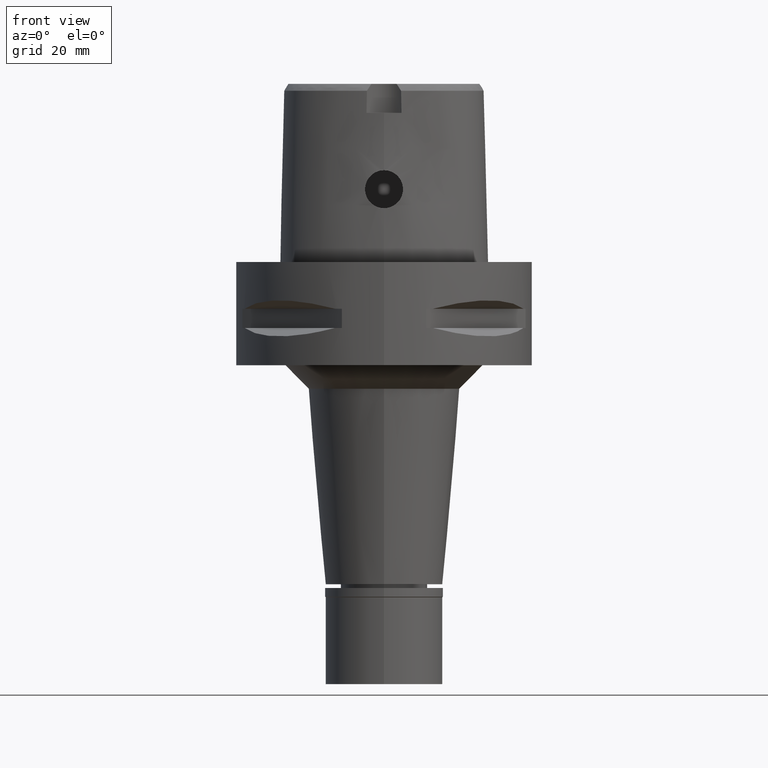
[diagram: clean part render]
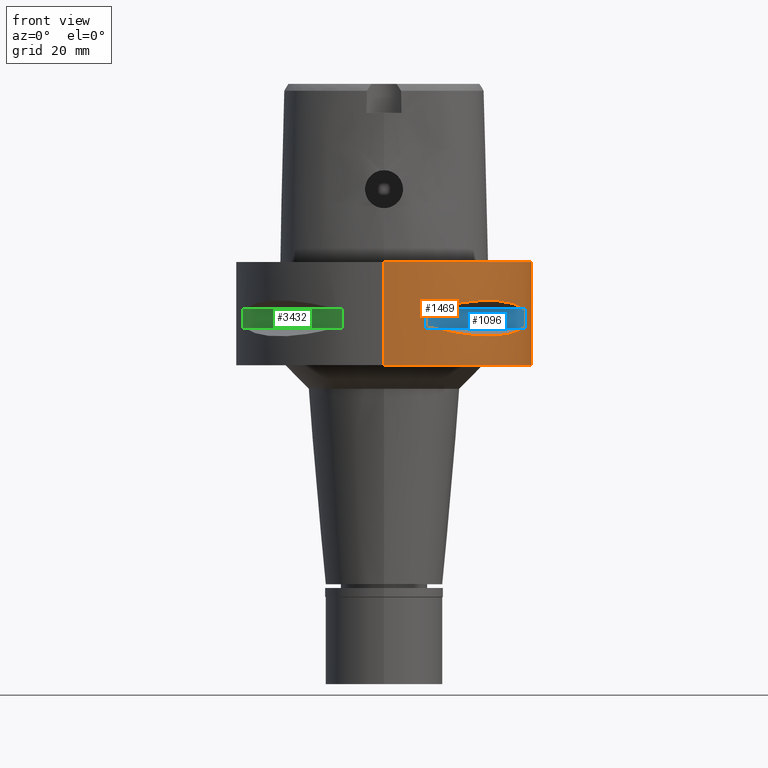
[diagram: same view with three faces highlighted in distinct colors, each labeled with its STEP entity id]
A machine part, front view with three faces highlighted in distinct colors.
Their STEP definitions:

[orange] entity #1469 — the highlighted cylindrical surface (partial cylindrical patch) has radius 31.5 mm, axis along (0, 0, -1).
#1 = CARTESIAN_POINT ( 'NONE',  ( 17.76952662671988392, 26.01217882834739470, -15.52665221626113912 ) ) ;
#26 = DIRECTION ( 'NONE',  ( 0.3316748332540863653, 0.9433937698468619626, 0.0000000000000000000 ) ) ;
#31 = CARTESIAN_POINT ( 'NONE',  ( 27.86285265926905197, -14.89252659056261052, -15.10765629751539230 ) ) ;
#52 = CARTESIAN_POINT ( 'NONE',  ( 26.64486562695712379, 16.80193241490734835, -15.38992683735741451 ) ) ;
#122 = CARTESIAN_POINT ( 'NONE',  ( 0.0000000000000000000, 0.0000000000000000000, -14.05000000000000071 ) ) ;
#184 = DIRECTION ( 'NONE',  ( 0.0000000000000000000, 0.0000000000000000000, -1.000000000000000000 ) ) ;
#193 = EDGE_CURVE ( 'NONE', #4927, #2574, #3085, .T. ) ;
#194 = AXIS2_PLACEMENT_3D ( 'NONE', #4985, #621, #2626 ) ;
#211 = DIRECTION ( 'NONE',  ( 0.0000000000000000000, -1.000000000000000000, 0.0000000000000000000 ) ) ;
#220 = CARTESIAN_POINT ( 'NONE',  ( 10.44775724750000023, -29.71690375017999841, -9.949999999998999201 ) ) ;
#253 = CARTESIAN_POINT ( 'NONE',  ( 23.90617837140503354, 20.64154884334747209, -8.160627831333194138 ) ) ;
#270 = CARTESIAN_POINT ( 'NONE',  ( 30.19251670572000279, -8.981198972017999438, -14.05000000000000071 ) ) ;
#283 = VECTOR ( 'NONE', #1720, 1000.000000000000000 ) ;
#305 = DIRECTION ( 'NONE',  ( 0.0000000000000000000, 0.0000000000000000000, 1.000000000000000000 ) ) ;
#327 = ORIENTED_EDGE ( 'NONE', *, *, #3297, .T. ) ;
#340 = CARTESIAN_POINT ( 'NONE',  ( 11.58970337495982328, -29.31542262584164504, -14.35229357167352049 ) ) ;
#393 = DIRECTION ( 'NONE',  ( 0.0000000000000000000, 0.0000000000000000000, -1.000000000000000000 ) ) ;
#403 = AXIS2_PLACEMENT_3D ( 'NONE', #3030, #305, #1879 ) ;
#441 = CARTESIAN_POINT ( 'NONE',  ( 16.89910283486517528, -26.58330558444475145, -15.40446471307230070 ) ) ;
#460 = CARTESIAN_POINT ( 'NONE',  ( 16.98999780422078132, 26.52527364208593141, -15.41788098766319060 ) ) ;
#481 = CIRCLE ( 'NONE', #3186, 31.50000000000001776 ) ;
#485 = CARTESIAN_POINT ( 'NONE',  ( 27.64634172017658642, 15.11986997311774417, -15.11207862404057423 ) ) ;
#524 = DIRECTION ( 'NONE',  ( 0.9584925938322735872, -0.2851174276831918153, 0.0000000000000000000 ) ) ;
#525 = CIRCLE ( 'NONE', #1759, 31.50000000000000000 ) ;
#540 = CARTESIAN_POINT ( 'NONE',  ( 12.70092055722019531, -28.92474506847807092, -9.353547358250271060 ) ) ;
#551 = CYLINDRICAL_SURFACE ( 'NONE', #1167, 31.50000000000000000 ) ;
#586 = CARTESIAN_POINT ( 'NONE',  ( 14.84422749186521351, -27.88214534477224049, -8.906206096533258787 ) ) ;
#600 = CARTESIAN_POINT ( 'NONE',  ( 10.44775724750000023, 29.71690375017999841, -14.05000000000000071 ) ) ;
#621 = DIRECTION ( 'NONE',  ( 0.0000000000000000000, 0.0000000000000000000, 1.000000000000000000 ) ) ;
#635 = EDGE_CURVE ( 'NONE', #3683, #4020, #3807, .T. ) ;
#681 = ORIENTED_EDGE ( 'NONE', *, *, #4947, .T. ) ;
#689 = CARTESIAN_POINT ( 'NONE',  ( 29.71690375017999841, -10.44775724750000023, -9.949999999998999201 ) ) ;
#694 = ORIENTED_EDGE ( 'NONE', *, *, #3502, .F. ) ;
#697 = DIRECTION ( 'NONE',  ( 0.0000000000000000000, 0.0000000000000000000, 1.000000000000000000 ) ) ;
#725 = VERTEX_POINT ( 'NONE', #2462 ) ;
#727 = ORIENTED_EDGE ( 'NONE', *, *, #3469, .T. ) ;
#737 = VERTEX_POINT ( 'NONE', #2077 ) ;
#749 = CARTESIAN_POINT ( 'NONE',  ( 29.71690375017999841, -10.44775724750000023, -9.949999999998999201 ) ) ;
#757 = EDGE_CURVE ( 'NONE', #725, #1574, #3251, .T. ) ;
#820 = ORIENTED_EDGE ( 'NONE', *, *, #3814, .F. ) ;
#827 = CIRCLE ( 'NONE', #1228, 31.50000000000000711 ) ;
#832 = VERTEX_POINT ( 'NONE', #1460 ) ;
#852 = CARTESIAN_POINT ( 'NONE',  ( 17.35163608579770766, 26.29071741523690875, -15.46976201925451022 ) ) ;
#863 = CIRCLE ( 'NONE', #3713, 31.50000000000001776 ) ;
#887 = EDGE_CURVE ( 'NONE', #4927, #5047, #4110, .T. ) ;
#934 = ORIENTED_EDGE ( 'NONE', *, *, #1846, .F. ) ;
#988 = DIRECTION ( 'NONE',  ( 0.0000000000000000000, 0.0000000000000000000, -1.000000000000000000 ) ) ;
#989 = FACE_BOUND ( 'NONE', #1429, .T. ) ;
#998 = CARTESIAN_POINT ( 'NONE',  ( 10.44775724750000023, -29.71690375017999841, -14.05000000000000071 ) ) ;
#1044 = LINE ( 'NONE', #2196, #2656 ) ;
#1110 = VERTEX_POINT ( 'NONE', #3492 ) ;
#1115 = CARTESIAN_POINT ( 'NONE',  ( 8.981198972017999438, -30.19251670572000279, -9.950000000000001066 ) ) ;
#1126 = AXIS2_PLACEMENT_3D ( 'NONE', #2351, #393, #524 ) ;
#1144 = CARTESIAN_POINT ( 'NONE',  ( 29.71690375017999841, -10.44775724750000023, -14.05000000000000071 ) ) ;
#1164 = CARTESIAN_POINT ( 'NONE',  ( 12.73197616787212993, 28.91382665369246752, -14.65467361753630549 ) ) ;
#1166 = CARTESIAN_POINT ( 'NONE',  ( 0.0000000000000000000, 0.0000000000000000000, -9.950000000000001066 ) ) ;
#1167 = AXIS2_PLACEMENT_3D ( 'NONE', #2173, #4855, #211 ) ;
#1169 = CARTESIAN_POINT ( 'NONE',  ( 18.86897208075581034, -25.32725744465475515, -15.69588095933493932 ) ) ;
#1198 = CARTESIAN_POINT ( 'NONE',  ( 25.43927894891756125, -18.59229662065117594, -15.62866126334438732 ) ) ;
#1228 = AXIS2_PLACEMENT_3D ( 'NONE', #5061, #1980, #26 ) ;
#1261 = CARTESIAN_POINT ( 'NONE',  ( 17.05047092244258522, 26.48642424310472876, -15.42670883407663496 ) ) ;
#1293 = VERTEX_POINT ( 'NONE', #1660 ) ;
#1298 = VERTEX_POINT ( 'NONE', #4367 ) ;
#1313 = DIRECTION ( 'NONE',  ( 0.0000000000000000000, 0.0000000000000000000, -1.000000000000000000 ) ) ;
#1347 = VERTEX_POINT ( 'NONE', #600 ) ;
#1348 = EDGE_CURVE ( 'NONE', #1298, #3415, #4926, .T. ) ;
#1372 = FACE_BOUND ( 'NONE', #4228, .T. ) ;
#1379 = DIRECTION ( 'NONE',  ( 0.0000000000000000000, 0.0000000000000000000, -1.000000000000000000 ) ) ;
#1429 = EDGE_LOOP ( 'NONE', ( #4175, #3930, #2869, #934, #3379, #2737, #3327, #681 ) ) ;
#1439 = CARTESIAN_POINT ( 'NONE',  ( 25.37272068390325330, -18.81462633043451405, -8.309724968561150504 ) ) ;
#1445 = CARTESIAN_POINT ( 'NONE',  ( 14.84430321591224278, 27.88210502977329597, -8.906184731931707788 ) ) ;
#1460 = CARTESIAN_POINT ( 'NONE',  ( 30.19251670572000279, 8.981198972019999616, -9.950000000000001066 ) ) ;
#1469 = ADVANCED_FACE ( 'NONE', ( #1762, #989, #1372 ), #551, .T. ) ;
#1508 = ORIENTED_EDGE ( 'NONE', *, *, #4499, .T. ) ;
#1547 = CARTESIAN_POINT ( 'NONE',  ( 21.46242677078074834, 23.08532645888130830, -15.83938991065315172 ) ) ;
#1574 = VERTEX_POINT ( 'NONE', #1891 ) ;
#1577 = CARTESIAN_POINT ( 'NONE',  ( 29.71690375017999841, -10.44775724750000023, -14.05000000000000071 ) ) ;
#1579 = CARTESIAN_POINT ( 'NONE',  ( 26.48642424310472876, -17.05047092244258522, -15.42670883407663496 ) ) ;
#1609 = AXIS2_PLACEMENT_3D ( 'NONE', #122, #1379, #3319 ) ;
#1647 = CARTESIAN_POINT ( 'NONE',  ( 17.14106442934748742, 26.42800887047532754, -15.43984550238493547 ) ) ;
#1654 = CARTESIAN_POINT ( 'NONE',  ( 0.0000000000000000000, 31.50000000000000000, -22.00000000000000000 ) ) ;
#1660 = CARTESIAN_POINT ( 'NONE',  ( 0.0000000000000000000, 31.50000000000000000, 0.0000000000000000000 ) ) ;
#1676 = VERTEX_POINT ( 'NONE', #4296 ) ;
#1720 = DIRECTION ( 'NONE',  ( 0.0000000000000000000, 0.0000000000000000000, -1.000000000000000000 ) ) ;
#1759 = AXIS2_PLACEMENT_3D ( 'NONE', #2628, #184, #2651 ) ;
#1762 = FACE_OUTER_BOUND ( 'NONE', #2212, .T. ) ;
#1772 = CARTESIAN_POINT ( 'NONE',  ( 0.0000000000000000000, 31.50000000000000000, 0.0000000000000000000 ) ) ;
#1812 = DIRECTION ( 'NONE',  ( 0.9433937698468619626, 0.3316748332540863653, 0.0000000000000000000 ) ) ;
#1828 = CARTESIAN_POINT ( 'NONE',  ( 18.81462633043445010, 25.37272068390330659, -8.309724968561150504 ) ) ;
#1846 = EDGE_CURVE ( 'NONE', #3683, #2574, #4159, .T. ) ;
#1879 = DIRECTION ( 'NONE',  ( 0.2851174276831918153, -0.9584925938322735872, 0.0000000000000000000 ) ) ;
#1891 = CARTESIAN_POINT ( 'NONE',  ( 0.0000000000000000000, -31.50000000000000000, -22.00000000000000000 ) ) ;
#1936 = CARTESIAN_POINT ( 'NONE',  ( 27.88214534477226536, 14.84422749186517265, -8.906206096533262340 ) ) ;
#1963 = CARTESIAN_POINT ( 'NONE',  ( 26.29071741523690875, -17.35163608579770766, -15.46976201925451022 ) ) ;
#1980 = DIRECTION ( 'NONE',  ( 0.0000000000000000000, 0.0000000000000000000, 1.000000000000000000 ) ) ;
#2006 = CARTESIAN_POINT ( 'NONE',  ( 26.84474411198545596, 16.48208282229538213, -15.34094883778132790 ) ) ;
#2015 = CARTESIAN_POINT ( 'NONE',  ( 10.44775724750000023, -29.71690375017999841, -14.05000000000000071 ) ) ;
#2055 = CARTESIAN_POINT ( 'NONE',  ( 25.32725744465475515, 18.86897208075581034, -15.69588095933493932 ) ) ;
#2077 = CARTESIAN_POINT ( 'NONE',  ( 29.71690375017999841, 10.44775724750000023, -9.949999999998999201 ) ) ;
#2105 = VERTEX_POINT ( 'NONE', #1654 ) ;
#2153 = CARTESIAN_POINT ( 'NONE',  ( 18.81455742151816324, -25.37277178176729819, -8.309746333162701504 ) ) ;
#2173 = CARTESIAN_POINT ( 'NONE',  ( 0.0000000000000000000, 0.0000000000000000000, 4.190000000000000391 ) ) ;
#2174 = VECTOR ( 'NONE', #3163, 1000.000000000000000 ) ;
#2196 = CARTESIAN_POINT ( 'NONE',  ( 30.19251670572000279, 8.981198972017999438, -9.950000000000001066 ) ) ;
#2212 = EDGE_LOOP ( 'NONE', ( #1508, #4451, #2414, #820 ) ) ;
#2239 = CARTESIAN_POINT ( 'NONE',  ( 0.0000000000000000000, 0.0000000000000000000, -22.00000000000000000 ) ) ;
#2264 = CARTESIAN_POINT ( 'NONE',  ( 30.19251670572000279, 8.981198972017999438, -14.05000000000000071 ) ) ;
#2288 = CARTESIAN_POINT ( 'NONE',  ( 12.70097436192362572, 28.92472615202281006, -9.353533115182571578 ) ) ;
#2299 = EDGE_CURVE ( 'NONE', #5031, #5047, #2416, .T. ) ;
#2319 = CARTESIAN_POINT ( 'NONE',  ( 13.25636937906381974, -28.62019653467925551, -14.74888225542034448 ) ) ;
#2346 = CARTESIAN_POINT ( 'NONE',  ( 24.23018836745477245, -20.18579225686149314, -15.78559396979075125 ) ) ;
#2350 = EDGE_CURVE ( 'NONE', #832, #737, #863, .T. ) ;
#2351 = CARTESIAN_POINT ( 'NONE',  ( 0.0000000000000000000, 0.0000000000000000000, -14.05000000000000071 ) ) ;
#2367 = CARTESIAN_POINT ( 'NONE',  ( 14.89252659056261052, 27.86285265926905197, -15.10765629751539230 ) ) ;
#2369 = LINE ( 'NONE', #1115, #2174 ) ;
#2371 = CARTESIAN_POINT ( 'NONE',  ( 16.03138450079452682, -27.11872488588860008, -15.26880420107959146 ) ) ;
#2378 = EDGE_CURVE ( 'NONE', #4825, #4020, #2369, .T. ) ;
#2392 = CARTESIAN_POINT ( 'NONE',  ( 10.44775724750000023, 29.71690375017999841, -14.05000000000000071 ) ) ;
#2394 = DIRECTION ( 'NONE',  ( 0.9584925938322735872, 0.2851174276831918153, 0.0000000000000000000 ) ) ;
#2395 = CARTESIAN_POINT ( 'NONE',  ( 26.01217882834739470, -17.76952662671988392, -15.52665221626113912 ) ) ;
#2414 = ORIENTED_EDGE ( 'NONE', *, *, #3372, .T. ) ;
#2416 = CIRCLE ( 'NONE', #194, 31.50000000000000711 ) ;
#2462 = CARTESIAN_POINT ( 'NONE',  ( 0.0000000000000000000, -31.50000000000000000, 0.0000000000000000000 ) ) ;
#2514 = CARTESIAN_POINT ( 'NONE',  ( 8.981198972019999616, -30.19251670572000279, -9.950000000000001066 ) ) ;
#2574 = VERTEX_POINT ( 'NONE', #1577 ) ;
#2576 = DIRECTION ( 'NONE',  ( 0.0000000000000000000, 0.0000000000000000000, -1.000000000000000000 ) ) ;
#2588 = B_SPLINE_CURVE_WITH_KNOTS ( 'NONE', 3,
 ( #3560, #2726, #2752, #485, #4280, #2006, #4379, #52, #3534, #3181, #2055, #3510, #1547, #3203, #3107, #1, #852, #1647, #1261, #460, #4667, #2367, #1164, #2392 ),
 .UNSPECIFIED., .F., .F.,
 ( 4, 1, 1, 1, 1, 1, 2, 2, 2, 1, 1, 1, 1, 1, 2, 2, 4 ),
 ( 0.0000000000000000000, 0.1249999999999912292, 0.1874999999999869826, 0.2187499999999850120, 0.2343749999999839295, 0.2421874999999835409, 0.2460937499999835687, 0.2499999999999836242, 0.4999999999999924505, 0.6249999999999968914, 0.6874999999999992228, 0.7187500000000003331, 0.7343750000000009992, 0.7421875000000014433, 0.7460937500000016653, 0.7500000000000019984, 1.000000000000000000 ),
 .UNSPECIFIED. ) ;
#2626 = DIRECTION ( 'NONE',  ( 0.9433937698468619626, -0.3316748332540863653, 0.0000000000000000000 ) ) ;
#2628 = CARTESIAN_POINT ( 'NONE',  ( 0.0000000000000000000, 0.0000000000000000000, 0.0000000000000000000 ) ) ;
#2651 = DIRECTION ( 'NONE',  ( 0.0000000000000000000, 1.000000000000000000, 0.0000000000000000000 ) ) ;
#2656 = VECTOR ( 'NONE', #988, 1000.000000000000000 ) ;
#2702 = CIRCLE ( 'NONE', #403, 31.50000000000001776 ) ;
#2726 = CARTESIAN_POINT ( 'NONE',  ( 29.31542262584164504, 11.58970337495982328, -14.35229357167352049 ) ) ;
#2737 = ORIENTED_EDGE ( 'NONE', *, *, #2378, .F. ) ;
#2752 = CARTESIAN_POINT ( 'NONE',  ( 28.62019653467925551, 13.25636937906381974, -14.74888225542034448 ) ) ;
#2869 = ORIENTED_EDGE ( 'NONE', *, *, #193, .T. ) ;
#3030 = CARTESIAN_POINT ( 'NONE',  ( 0.0000000000000000000, 0.0000000000000000000, -9.950000000000001066 ) ) ;
#3082 = CARTESIAN_POINT ( 'NONE',  ( 10.44775724750000023, 29.71690375017999841, -9.949999999998999201 ) ) ;
#3085 = CIRCLE ( 'NONE', #1126, 31.50000000000001776 ) ;
#3087 = CARTESIAN_POINT ( 'NONE',  ( 23.08532645888130830, -21.46242677078074834, -15.83938991065315172 ) ) ;
#3107 = CARTESIAN_POINT ( 'NONE',  ( 18.59229662065117594, 25.43927894891756125, -15.62866126334438732 ) ) ;
#3114 = CARTESIAN_POINT ( 'NONE',  ( 16.48208282229538213, -26.84474411198545596, -15.34094883778132790 ) ) ;
#3134 = DIRECTION ( 'NONE',  ( 0.2851174276831918153, 0.9584925938322735872, 0.0000000000000000000 ) ) ;
#3163 = DIRECTION ( 'NONE',  ( 0.0000000000000000000, 0.0000000000000000000, -1.000000000000000000 ) ) ;
#3181 = CARTESIAN_POINT ( 'NONE',  ( 26.58330558444475145, 16.89910283486517528, -15.40446471307230070 ) ) ;
#3186 = AXIS2_PLACEMENT_3D ( 'NONE', #4717, #4690, #3134 ) ;
#3201 = AXIS2_PLACEMENT_3D ( 'NONE', #4443, #2576, #1812 ) ;
#3203 = CARTESIAN_POINT ( 'NONE',  ( 20.18579225686149314, 24.23018836745477245, -15.78559396979075125 ) ) ;
#3251 = LINE ( 'NONE', #4814, #283 ) ;
#3253 = EDGE_CURVE ( 'NONE', #4825, #4928, #2702, .T. ) ;
#3254 = ORIENTED_EDGE ( 'NONE', *, *, #3532, .T. ) ;
#3297 = EDGE_CURVE ( 'NONE', #737, #1110, #3738, .T. ) ;
#3319 = DIRECTION ( 'NONE',  ( 0.3316748332540863653, -0.9433937698468619626, 0.0000000000000000000 ) ) ;
#3327 = ORIENTED_EDGE ( 'NONE', *, *, #3253, .T. ) ;
#3370 = DIRECTION ( 'NONE',  ( 0.0000000000000000000, 0.0000000000000000000, 1.000000000000000000 ) ) ;
#3372 = EDGE_CURVE ( 'NONE', #1574, #2105, #4329, .T. ) ;
#3374 = CARTESIAN_POINT ( 'NONE',  ( 30.19251670572000279, -8.981198972017999438, -9.950000000000001066 ) ) ;
#3379 = ORIENTED_EDGE ( 'NONE', *, *, #635, .T. ) ;
#3415 = VERTEX_POINT ( 'NONE', #2264 ) ;
#3426 = AXIS2_PLACEMENT_3D ( 'NONE', #2239, #697, #3864 ) ;
#3439 = EDGE_CURVE ( 'NONE', #1298, #1347, #2588, .T. ) ;
#3469 = EDGE_CURVE ( 'NONE', #1676, #1347, #481, .T. ) ;
#3492 = CARTESIAN_POINT ( 'NONE',  ( 10.44775724750000023, 29.71690375017999841, -9.949999999998999201 ) ) ;
#3502 = EDGE_CURVE ( 'NONE', #1676, #5072, #3897, .T. ) ;
#3503 = VECTOR ( 'NONE', #1313, 1000.000000000000000 ) ;
#3510 = CARTESIAN_POINT ( 'NONE',  ( 23.89673728055697310, 20.65093790435582122, -15.83935804901768307 ) ) ;
#3516 = CARTESIAN_POINT ( 'NONE',  ( 26.42800887047532754, -17.14106442934748742, -15.43984550238493547 ) ) ;
#3532 = EDGE_CURVE ( 'NONE', #1110, #5072, #827, .T. ) ;
#3534 = CARTESIAN_POINT ( 'NONE',  ( 26.60451452154724805, 16.86571563436727317, -15.39949295786030348 ) ) ;
#3560 = CARTESIAN_POINT ( 'NONE',  ( 29.71690375017999841, 10.44775724750000023, -14.05000000000000071 ) ) ;
#3565 = CARTESIAN_POINT ( 'NONE',  ( 26.54368690921640450, -16.96123479564944247, -15.41365572341321766 ) ) ;
#3658 = ORIENTED_EDGE ( 'NONE', *, *, #3439, .F. ) ;
#3683 = VERTEX_POINT ( 'NONE', #998 ) ;
#3713 = AXIS2_PLACEMENT_3D ( 'NONE', #1166, #5063, #2394 ) ;
#3738 = B_SPLINE_CURVE_WITH_KNOTS ( 'NONE', 3,
 ( #4982, #5007, #1936, #4957, #253, #4638, #1828, #1445, #2288, #3082 ),
 .UNSPECIFIED., .F., .F.,
 ( 4, 2, 2, 2, 4 ),
 ( 0.0000000000000000000, 0.2500000000000000000, 0.5000000000000000000, 0.7500000000000000000, 1.000000000000000000 ),
 .UNSPECIFIED. ) ;
#3781 = CARTESIAN_POINT ( 'NONE',  ( 23.90617837140503710, -20.64154884334746143, -8.160613588441446353 ) ) ;
#3807 = CIRCLE ( 'NONE', #1609, 31.50000000000000711 ) ;
#3814 = EDGE_CURVE ( 'NONE', #1293, #2105, #4819, .T. ) ;
#3834 = CARTESIAN_POINT ( 'NONE',  ( 27.88210502977326755, -14.84430321591229607, -8.906184731931707788 ) ) ;
#3861 = ORIENTED_EDGE ( 'NONE', *, *, #4560, .F. ) ;
#3864 = DIRECTION ( 'NONE',  ( 0.0000000000000000000, -1.000000000000000000, 0.0000000000000000000 ) ) ;
#3873 = CARTESIAN_POINT ( 'NONE',  ( 20.65093790435582122, -23.89673728055697310, -15.83935804901768307 ) ) ;
#3889 = CARTESIAN_POINT ( 'NONE',  ( 8.981198972017999438, -30.19251670572000279, -14.05000000000000071 ) ) ;
#3897 = LINE ( 'NONE', #4306, #4827 ) ;
#3901 = CARTESIAN_POINT ( 'NONE',  ( 16.70616724746141202, -26.70521063584408950, -15.37546661817775373 ) ) ;
#3921 = DIRECTION ( 'NONE',  ( 0.0000000000000000000, 0.0000000000000000000, 1.000000000000000000 ) ) ;
#3930 = ORIENTED_EDGE ( 'NONE', *, *, #887, .F. ) ;
#3946 = CARTESIAN_POINT ( 'NONE',  ( 28.91382665369246752, -12.73197616787212993, -14.65467361753630549 ) ) ;
#4020 = VERTEX_POINT ( 'NONE', #3889 ) ;
#4089 = CARTESIAN_POINT ( 'NONE',  ( 10.44775724750000023, -29.71690375017999841, -9.949999999998999201 ) ) ;
#4110 = LINE ( 'NONE', #270, #4215 ) ;
#4159 = B_SPLINE_CURVE_WITH_KNOTS ( 'NONE', 3,
 ( #2015, #340, #2319, #5039, #2371, #3114, #3901, #4288, #4671, #441, #1169, #3873, #3087, #2346, #1198, #2395, #1963, #3516, #1579, #4643, #3565, #31, #3946, #1144 ),
 .UNSPECIFIED., .F., .F.,
 ( 4, 1, 1, 1, 1, 1, 2, 2, 2, 1, 1, 1, 1, 1, 2, 2, 4 ),
 ( 0.0000000000000000000, 0.1249999999999912292, 0.1874999999999869826, 0.2187499999999850120, 0.2343749999999839295, 0.2421874999999835409, 0.2460937499999835687, 0.2499999999999836242, 0.4999999999999924505, 0.6249999999999968914, 0.6874999999999992228, 0.7187500000000003331, 0.7343750000000009992, 0.7421875000000014433, 0.7460937500000016653, 0.7500000000000019984, 1.000000000000000000 ),
 .UNSPECIFIED. ) ;
#4175 = ORIENTED_EDGE ( 'NONE', *, *, #2299, .T. ) ;
#4181 = B_SPLINE_CURVE_WITH_KNOTS ( 'NONE', 3,
 ( #4089, #540, #586, #2153, #4502, #3781, #1439, #3834, #5056, #749 ),
 .UNSPECIFIED., .F., .F.,
 ( 4, 2, 2, 2, 4 ),
 ( 0.0000000000000000000, 0.2500000000000001110, 0.5000000000000000000, 0.7500000000000000000, 1.000000000000000000 ),
 .UNSPECIFIED. ) ;
#4215 = VECTOR ( 'NONE', #3370, 1000.000000000000000 ) ;
#4228 = EDGE_LOOP ( 'NONE', ( #3254, #694, #727, #3658, #4253, #3861, #4818, #327 ) ) ;
#4253 = ORIENTED_EDGE ( 'NONE', *, *, #1348, .T. ) ;
#4280 = CARTESIAN_POINT ( 'NONE',  ( 27.11872488588860008, 16.03138450079452682, -15.26880420107959146 ) ) ;
#4288 = CARTESIAN_POINT ( 'NONE',  ( 16.80193241490734835, -26.64486562695712379, -15.38992683735741451 ) ) ;
#4296 = CARTESIAN_POINT ( 'NONE',  ( 8.981198972019999616, 30.19251670572000279, -14.05000000000000071 ) ) ;
#4306 = CARTESIAN_POINT ( 'NONE',  ( 8.981198972017999438, 30.19251670572000279, -14.05000000000000071 ) ) ;
#4329 = CIRCLE ( 'NONE', #3426, 31.50000000000000000 ) ;
#4367 = CARTESIAN_POINT ( 'NONE',  ( 29.71690375017999841, 10.44775724750000023, -14.05000000000000071 ) ) ;
#4379 = CARTESIAN_POINT ( 'NONE',  ( 26.70521063584408950, 16.70616724746141202, -15.37546661817775373 ) ) ;
#4430 = CARTESIAN_POINT ( 'NONE',  ( 30.19251670572000279, -8.981198972019999616, -14.05000000000000071 ) ) ;
#4443 = CARTESIAN_POINT ( 'NONE',  ( 0.0000000000000000000, 0.0000000000000000000, -14.05000000000000071 ) ) ;
#4451 = ORIENTED_EDGE ( 'NONE', *, *, #757, .T. ) ;
#4499 = EDGE_CURVE ( 'NONE', #1293, #725, #525, .T. ) ;
#4502 = CARTESIAN_POINT ( 'NONE',  ( 20.64154884334739393, -23.90617837140509039, -8.160627831333192361 ) ) ;
#4555 = CARTESIAN_POINT ( 'NONE',  ( 8.981198972017999438, 30.19251670572000279, -9.950000000000001066 ) ) ;
#4560 = EDGE_CURVE ( 'NONE', #832, #3415, #1044, .T. ) ;
#4638 = CARTESIAN_POINT ( 'NONE',  ( 20.64154884334739037, 23.90617837140508684, -8.160613588441446353 ) ) ;
#4643 = CARTESIAN_POINT ( 'NONE',  ( 26.52527364208593141, -16.98999780422078132, -15.41788098766319060 ) ) ;
#4667 = CARTESIAN_POINT ( 'NONE',  ( 16.96123479564944247, 26.54368690921640450, -15.41365572341321766 ) ) ;
#4671 = CARTESIAN_POINT ( 'NONE',  ( 16.86571563436727317, -26.60451452154724805, -15.39949295786030348 ) ) ;
#4690 = DIRECTION ( 'NONE',  ( 0.0000000000000000000, 0.0000000000000000000, -1.000000000000000000 ) ) ;
#4717 = CARTESIAN_POINT ( 'NONE',  ( 0.0000000000000000000, 0.0000000000000000000, -14.05000000000000071 ) ) ;
#4814 = CARTESIAN_POINT ( 'NONE',  ( 0.0000000000000000000, -31.50000000000000000, 0.0000000000000000000 ) ) ;
#4818 = ORIENTED_EDGE ( 'NONE', *, *, #2350, .T. ) ;
#4819 = LINE ( 'NONE', #1772, #3503 ) ;
#4825 = VERTEX_POINT ( 'NONE', #2514 ) ;
#4827 = VECTOR ( 'NONE', #3921, 1000.000000000000000 ) ;
#4855 = DIRECTION ( 'NONE',  ( 0.0000000000000000000, 0.0000000000000000000, -1.000000000000000000 ) ) ;
#4926 = CIRCLE ( 'NONE', #3201, 31.50000000000000711 ) ;
#4927 = VERTEX_POINT ( 'NONE', #4430 ) ;
#4928 = VERTEX_POINT ( 'NONE', #220 ) ;
#4947 = EDGE_CURVE ( 'NONE', #4928, #5031, #4181, .T. ) ;
#4957 = CARTESIAN_POINT ( 'NONE',  ( 25.37277178176730885, 18.81455742151815969, -8.309746333162701504 ) ) ;
#4982 = CARTESIAN_POINT ( 'NONE',  ( 29.71690375017999841, 10.44775724750000023, -9.949999999998999201 ) ) ;
#4985 = CARTESIAN_POINT ( 'NONE',  ( 0.0000000000000000000, 0.0000000000000000000, -9.950000000000001066 ) ) ;
#5007 = CARTESIAN_POINT ( 'NONE',  ( 28.92474506847807803, 12.70092055722014379, -9.353547358250267507 ) ) ;
#5031 = VERTEX_POINT ( 'NONE', #689 ) ;
#5039 = CARTESIAN_POINT ( 'NONE',  ( 15.11986997311774417, -27.64634172017658642, -15.11207862404057423 ) ) ;
#5047 = VERTEX_POINT ( 'NONE', #3374 ) ;
#5056 = CARTESIAN_POINT ( 'NONE',  ( 28.92472615202282427, -12.70097436192360973, -9.353533115182571578 ) ) ;
#5061 = CARTESIAN_POINT ( 'NONE',  ( 0.0000000000000000000, 0.0000000000000000000, -9.950000000000001066 ) ) ;
#5063 = DIRECTION ( 'NONE',  ( 0.0000000000000000000, 0.0000000000000000000, 1.000000000000000000 ) ) ;
#5072 = VERTEX_POINT ( 'NONE', #4555 ) ;

[blue] entity #1096 — the highlighted planar face has unit normal (-0.7071, 0.7071, 0).
#100 = PLANE ( 'NONE',  #4438 ) ;
#270 = CARTESIAN_POINT ( 'NONE',  ( 30.19251670572000279, -8.981198972017999438, -14.05000000000000071 ) ) ;
#582 = DIRECTION ( 'NONE',  ( 0.7071067811865474617, 0.7071067811865474617, 0.0000000000000000000 ) ) ;
#887 = EDGE_CURVE ( 'NONE', #4927, #5047, #4110, .T. ) ;
#925 = CARTESIAN_POINT ( 'NONE',  ( 8.981198972017999438, -30.19251670572000279, -14.05000000000000071 ) ) ;
#1096 = ADVANCED_FACE ( 'NONE', ( #1913 ), #100, .F. ) ;
#1115 = CARTESIAN_POINT ( 'NONE',  ( 8.981198972017999438, -30.19251670572000279, -9.950000000000001066 ) ) ;
#1913 = FACE_OUTER_BOUND ( 'NONE', #4688, .T. ) ;
#2174 = VECTOR ( 'NONE', #3163, 1000.000000000000000 ) ;
#2282 = VECTOR ( 'NONE', #582, 1000.000000000000114 ) ;
#2369 = LINE ( 'NONE', #1115, #2174 ) ;
#2378 = EDGE_CURVE ( 'NONE', #4825, #4020, #2369, .T. ) ;
#2514 = CARTESIAN_POINT ( 'NONE',  ( 8.981198972019999616, -30.19251670572000279, -9.950000000000001066 ) ) ;
#2844 = CARTESIAN_POINT ( 'NONE',  ( 8.981198972017999438, -30.19251670572000279, -9.950000000000001066 ) ) ;
#3163 = DIRECTION ( 'NONE',  ( 0.0000000000000000000, 0.0000000000000000000, -1.000000000000000000 ) ) ;
#3262 = VECTOR ( 'NONE', #3680, 1000.000000000000114 ) ;
#3370 = DIRECTION ( 'NONE',  ( 0.0000000000000000000, 0.0000000000000000000, 1.000000000000000000 ) ) ;
#3374 = CARTESIAN_POINT ( 'NONE',  ( 30.19251670572000279, -8.981198972017999438, -9.950000000000001066 ) ) ;
#3521 = ORIENTED_EDGE ( 'NONE', *, *, #4158, .T. ) ;
#3553 = LINE ( 'NONE', #2844, #3262 ) ;
#3613 = CARTESIAN_POINT ( 'NONE',  ( 33.72899346260000186, -5.444722215136000187, -9.950000000000001066 ) ) ;
#3680 = DIRECTION ( 'NONE',  ( 0.7071067811865474617, 0.7071067811865474617, 0.0000000000000000000 ) ) ;
#3889 = CARTESIAN_POINT ( 'NONE',  ( 8.981198972017999438, -30.19251670572000279, -14.05000000000000071 ) ) ;
#4020 = VERTEX_POINT ( 'NONE', #3889 ) ;
#4037 = LINE ( 'NONE', #925, #2282 ) ;
#4110 = LINE ( 'NONE', #270, #4215 ) ;
#4122 = ORIENTED_EDGE ( 'NONE', *, *, #4124, .F. ) ;
#4124 = EDGE_CURVE ( 'NONE', #4825, #5047, #3553, .T. ) ;
#4158 = EDGE_CURVE ( 'NONE', #4020, #4927, #4037, .T. ) ;
#4215 = VECTOR ( 'NONE', #3370, 1000.000000000000000 ) ;
#4238 = DIRECTION ( 'NONE',  ( 0.0000000000000000000, 0.0000000000000000000, 1.000000000000000000 ) ) ;
#4408 = DIRECTION ( 'NONE',  ( -0.7071067811865475727, 0.7071067811865475727, 0.0000000000000000000 ) ) ;
#4430 = CARTESIAN_POINT ( 'NONE',  ( 30.19251670572000279, -8.981198972019999616, -14.05000000000000071 ) ) ;
#4438 = AXIS2_PLACEMENT_3D ( 'NONE', #3613, #4408, #4238 ) ;
#4548 = ORIENTED_EDGE ( 'NONE', *, *, #887, .T. ) ;
#4688 = EDGE_LOOP ( 'NONE', ( #4122, #4882, #3521, #4548 ) ) ;
#4825 = VERTEX_POINT ( 'NONE', #2514 ) ;
#4882 = ORIENTED_EDGE ( 'NONE', *, *, #2378, .T. ) ;
#4927 = VERTEX_POINT ( 'NONE', #4430 ) ;
#5047 = VERTEX_POINT ( 'NONE', #3374 ) ;

[green] entity #3432 — the highlighted planar face has unit normal (0.7071, 0.7071, 0).
#23 = EDGE_CURVE ( 'NONE', #3244, #4742, #2939, .T. ) ;
#92 = DIRECTION ( 'NONE',  ( 0.0000000000000000000, 0.0000000000000000000, 1.000000000000000000 ) ) ;
#202 = EDGE_LOOP ( 'NONE', ( #4434, #2376, #850, #2340 ) ) ;
#267 = LINE ( 'NONE', #1432, #3666 ) ;
#404 = VECTOR ( 'NONE', #1028, 1000.000000000000114 ) ;
#445 = VECTOR ( 'NONE', #4179, 1000.000000000000114 ) ;
#661 = EDGE_CURVE ( 'NONE', #4742, #1636, #3605, .T. ) ;
#728 = DIRECTION ( 'NONE',  ( 0.7071067811865475727, 0.7071067811865475727, 0.0000000000000000000 ) ) ;
#850 = ORIENTED_EDGE ( 'NONE', *, *, #23, .T. ) ;
#984 = CARTESIAN_POINT ( 'NONE',  ( -30.19251670572000279, -8.981198972017999438, -9.950000000000001066 ) ) ;
#1028 = DIRECTION ( 'NONE',  ( 0.7071067811865474617, -0.7071067811865474617, 0.0000000000000000000 ) ) ;
#1112 = FACE_OUTER_BOUND ( 'NONE', #202, .T. ) ;
#1408 = CARTESIAN_POINT ( 'NONE',  ( -30.19251670572000279, -8.981198972017999438, -14.05000000000000071 ) ) ;
#1432 = CARTESIAN_POINT ( 'NONE',  ( -30.19251670572000279, -8.981198972017999438, -9.950000000000001066 ) ) ;
#1483 = DIRECTION ( 'NONE',  ( 0.0000000000000000000, 0.0000000000000000000, -1.000000000000000000 ) ) ;
#1636 = VERTEX_POINT ( 'NONE', #3803 ) ;
#1965 = AXIS2_PLACEMENT_3D ( 'NONE', #4230, #728, #3839 ) ;
#2083 = CARTESIAN_POINT ( 'NONE',  ( -8.981198972019999616, -30.19251670572000279, -14.05000000000000071 ) ) ;
#2214 = CARTESIAN_POINT ( 'NONE',  ( -30.19251670572000279, -8.981198972017999438, -14.05000000000000071 ) ) ;
#2220 = EDGE_CURVE ( 'NONE', #2311, #1636, #4485, .T. ) ;
#2311 = VERTEX_POINT ( 'NONE', #2977 ) ;
#2340 = ORIENTED_EDGE ( 'NONE', *, *, #661, .T. ) ;
#2376 = ORIENTED_EDGE ( 'NONE', *, *, #4287, .T. ) ;
#2666 = VECTOR ( 'NONE', #92, 1000.000000000000000 ) ;
#2674 = PLANE ( 'NONE',  #1965 ) ;
#2938 = CARTESIAN_POINT ( 'NONE',  ( -8.981198972017999438, -30.19251670572000279, -14.05000000000000071 ) ) ;
#2939 = LINE ( 'NONE', #1408, #404 ) ;
#2977 = CARTESIAN_POINT ( 'NONE',  ( -30.19251670572000279, -8.981198972019999616, -9.950000000000001066 ) ) ;
#3244 = VERTEX_POINT ( 'NONE', #2214 ) ;
#3432 = ADVANCED_FACE ( 'NONE', ( #1112 ), #2674, .F. ) ;
#3605 = LINE ( 'NONE', #2938, #2666 ) ;
#3666 = VECTOR ( 'NONE', #1483, 1000.000000000000000 ) ;
#3803 = CARTESIAN_POINT ( 'NONE',  ( -8.981198972017999438, -30.19251670572000279, -9.950000000000001066 ) ) ;
#3839 = DIRECTION ( 'NONE',  ( 0.0000000000000000000, 0.0000000000000000000, -1.000000000000000000 ) ) ;
#4179 = DIRECTION ( 'NONE',  ( 0.7071067811865474617, -0.7071067811865474617, 0.0000000000000000000 ) ) ;
#4230 = CARTESIAN_POINT ( 'NONE',  ( -5.444722215136000187, -33.72899346260000186, -9.950000000000001066 ) ) ;
#4287 = EDGE_CURVE ( 'NONE', #2311, #3244, #267, .T. ) ;
#4434 = ORIENTED_EDGE ( 'NONE', *, *, #2220, .F. ) ;
#4485 = LINE ( 'NONE', #984, #445 ) ;
#4742 = VERTEX_POINT ( 'NONE', #2083 ) ;